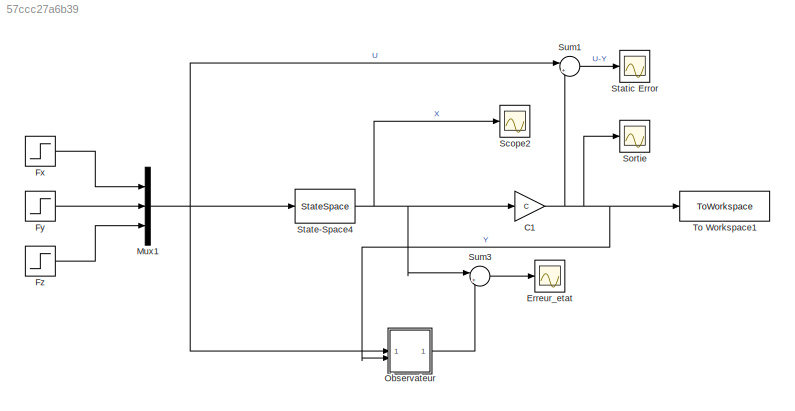
MODEL slx_57ccc27a6b39
KIND model
CONFIG AbsTol = auto
CONFIG EnableMultiTasking = off
CONFIG FixedStep = auto
CONFIG MaxStep = 0.001
CONFIG MinStep = auto
CONFIG RelTol = 1e-3
CONFIG SampleTimeConstraint = Unconstrained
CONFIG SolverName = VariableStepAuto
CONFIG StartTime = 0.0
CONFIG StopTime = 1.4
BLOCK [Gain] C1
  Gain = C
  Multiplication = Matrix(K*u)
BLOCK [Scope] Erreur_etat
  Floating = off
  NumInputPorts = 1
  ScopeSpecificationString = Simulink.scopes.TimeScopeBlockCfg('CurrentConfiguration', extmgr.ConfigurationSet(extmgr.Configuration('Core','General UI',true),extmgr.Configuration('Core','Source UI',true),extmgr.Configuration('Sources','WiredSimulink',true,'DataLoggingVariableName','ScopeData1'),extmgr.Configuration('Visuals','Time Domain',true,'SerializedDisplays',{struct('MinYLimReal','-0.09015','MaxYLimReal','0.13988','YLab...<+1568ch>
BLOCK [Step] Fx
  SampleTime = 0
  Time = 0
BLOCK [Step] Fy
  SampleTime = 0
  Time = 0
BLOCK [Step] Fz
  SampleTime = 0
  Time = 0
BLOCK [Mux] Mux1
  DisplayOption = bar
  Inputs = 3
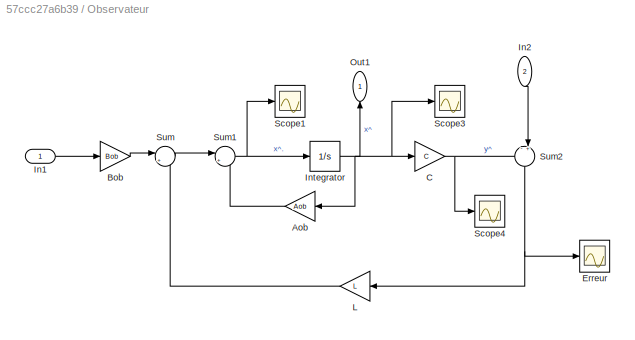
BLOCK [SubSystem] Observateur
BLOCK [Gain] Observateur/Aob
  Gain = Aob
  Multiplication = Matrix(K*u) (u vector)
BLOCK [Gain] Observateur/Bob
  Gain = Bob
  Multiplication = Matrix(K*u) (u vector)
BLOCK [Gain] Observateur/C
  Gain = C
  Multiplication = Matrix(K*u) (u vector)
BLOCK [Scope] Observateur/Erreur
  Floating = off
  NumInputPorts = 1
  ScopeSpecificationString = Simulink.scopes.TimeScopeBlockCfg('CurrentConfiguration', extmgr.ConfigurationSet(extmgr.Configuration('Core','General UI',true),extmgr.Configuration('Core','Source UI',true),extmgr.Configuration('Sources','WiredSimulink',true,'DataLoggingVariableName','ScopeData4'),extmgr.Configuration('Visuals','Time Domain',true,'SerializedDisplays',{struct('MinYLimReal','-0.00244','MaxYLimReal','0.00289','YLab...<+1551ch>
BLOCK [Inport] Observateur/In1
BLOCK [Inport] Observateur/In2
  NameLocation = left
  Port = 2
BLOCK [Integrator] Observateur/Integrator
BLOCK [Gain] Observateur/L
  Gain = L
  Multiplication = Matrix(K*u) (u vector)
BLOCK [Outport] Observateur/Out1
  NameLocation = right
BLOCK [Scope] Observateur/Scope1
  Floating = off
  NumInputPorts = 1
  ScopeSpecificationString = Simulink.scopes.TimeScopeBlockCfg('CurrentConfiguration', extmgr.ConfigurationSet(extmgr.Configuration('Core','General UI',true),extmgr.Configuration('Core','Source UI',true),extmgr.Configuration('Sources','WiredSimulink',true,'DataLoggingVariableName','ScopeData1'),extmgr.Configuration('Visuals','Time Domain',true,'SerializedDisplays',{struct('MinYLimReal','-1615.70216','MaxYLimReal','1849.68617'...<+1562ch>
BLOCK [Scope] Observateur/Scope3
  Floating = off
  NumInputPorts = 1
  ScopeSpecificationString = Simulink.scopes.TimeScopeBlockCfg('CurrentConfiguration', extmgr.ConfigurationSet(extmgr.Configuration('Core','General UI',true),extmgr.Configuration('Core','Source UI',true),extmgr.Configuration('Sources','WiredSimulink',true,'DataLoggingVariableName','ScopeData2'),extmgr.Configuration('Visuals','Time Domain',true,'SerializedDisplays',{struct('MinYLimReal','-7.70651','MaxYLimReal','5.63694','YLab...<+1531ch>
BLOCK [Scope] Observateur/Scope4
  Floating = off
  NumInputPorts = 1
  ScopeSpecificationString = Simulink.scopes.TimeScopeBlockCfg('CurrentConfiguration', extmgr.ConfigurationSet(extmgr.Configuration('Core','General UI',true),extmgr.Configuration('Core','Source UI',true),extmgr.Configuration('Sources','WiredSimulink',true,'DataLoggingVariableName','ScopeData3'),extmgr.Configuration('Visuals','Time Domain',true,'SerializedDisplays',{struct('MinYLimReal','-0.125','MaxYLimReal','0.125','YLabelRe...<+1500ch>
BLOCK [Sum] Observateur/Sum
  Inputs = |++
BLOCK [Sum] Observateur/Sum1
  Inputs = |++
BLOCK [Sum] Observateur/Sum2
  Inputs = -+|
  NameLocation = left
BLOCK [Scope] Scope2
  Floating = off
  NumInputPorts = 1
  ScopeSpecificationString = Simulink.scopes.TimeScopeBlockCfg('CurrentConfiguration', extmgr.ConfigurationSet(extmgr.Configuration('Core','General UI',true),extmgr.Configuration('Core','Source UI',true),extmgr.Configuration('Sources','WiredSimulink',true,'DataLoggingVariableName','ScopeData1'),extmgr.Configuration('Visuals','Time Domain',true,'SerializedDisplays',{struct('MinYLimReal','-1.10195','MaxYLimReal','1.92683','YLab...<+1527ch>
BLOCK [Scope] Sortie
  Floating = off
  NumInputPorts = 1
  ScopeSpecificationString = Simulink.scopes.TimeScopeBlockCfg('CurrentConfiguration', extmgr.ConfigurationSet(extmgr.Configuration('Core','General UI',true),extmgr.Configuration('Core','Source UI',true),extmgr.Configuration('Sources','WiredSimulink',true,'DataLoggingVariableName','ScopeData2'),extmgr.Configuration('Visuals','Time Domain',true,'SerializedDisplays',{struct('MinYLimReal','-0.125','MaxYLimReal','0.125','YLabelRe...<+1497ch>
BLOCK [StateSpace] State-Space4
  A = A
  B = B
  C = eye(6)
  D = zeros(6,3)
  InitialCondition = [0.1; 0; 0.1; 0; -0.1; 0]
BLOCK [Scope] Static Error
  Floating = off
  NumInputPorts = 1
  ScopeSpecificationString = Simulink.scopes.TimeScopeBlockCfg('CurrentConfiguration', extmgr.ConfigurationSet(extmgr.Configuration('Core','General UI',true),extmgr.Configuration('Core','Source UI',true),extmgr.Configuration('Sources','WiredSimulink',true,'DataLoggingVariableName','ScopeData1'),extmgr.Configuration('Visuals','Time Domain',true,'SerializedDisplays',{struct('MinYLimReal','0.62367','MaxYLimReal','1.15516','YLabe...<+1513ch>
BLOCK [Sum] Sum1
  Inputs = |+-
BLOCK [Sum] Sum3
  Inputs = |+-
BLOCK [ToWorkspace] To Workspace1
  FixptAsFi = on
  MaxDataPoints = inf
  SampleTime = -1
  SaveFormat = Timeseries
  VariableName = simout
NET C1:1 -> Observateur:2, Sortie:1, Sum1:2, To Workspace1:1
LINE Fx:1 -> Mux1:1
LINE Fy:1 -> Mux1:2
LINE Fz:1 -> Mux1:3
NET Mux1:1 -> Observateur:1, State-Space4:1, Sum1:1
LINE Observateur/Aob:1 -> Observateur/Sum1:2
LINE Observateur/Bob:1 -> Observateur/Sum:1
NET Observateur/C:1 -> Observateur/Scope4:1, Observateur/Sum2:1
LINE Observateur/In1:1 -> Observateur/Bob:1
LINE Observateur/In2:1 -> Observateur/Sum2:2
NET Observateur/Integrator:1 -> Observateur/Aob:1, Observateur/C:1, Observateur/Out1:1, Observateur/Scope3:1
LINE Observateur/L:1 -> Observateur/Sum:2
NET Observateur/Sum1:1 -> Observateur/Integrator:1, Observateur/Scope1:1
NET Observateur/Sum2:1 -> Observateur/Erreur:1, Observateur/L:1
LINE Observateur/Sum:1 -> Observateur/Sum1:1
LINE Observateur:1 -> Sum3:2
NET State-Space4:1 -> C1:1, Scope2:1, Sum3:1
LINE Sum1:1 -> Static Error:1
LINE Sum3:1 -> Erreur_etat:1
note: NET lines group one-source signal fan-out (src -> all destinations, sorted); 1:1 wires keep LINE
